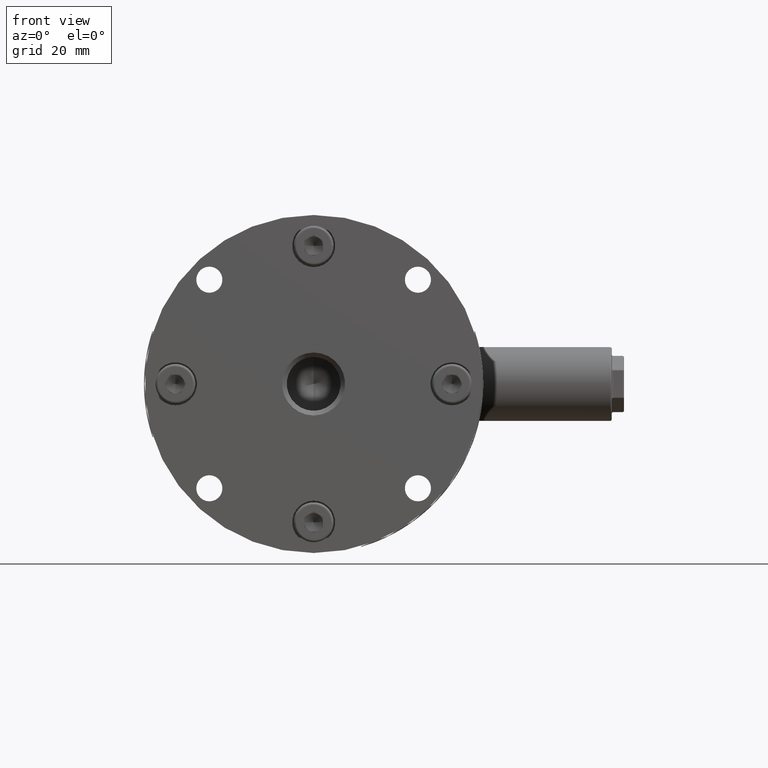
[diagram: clean part render]
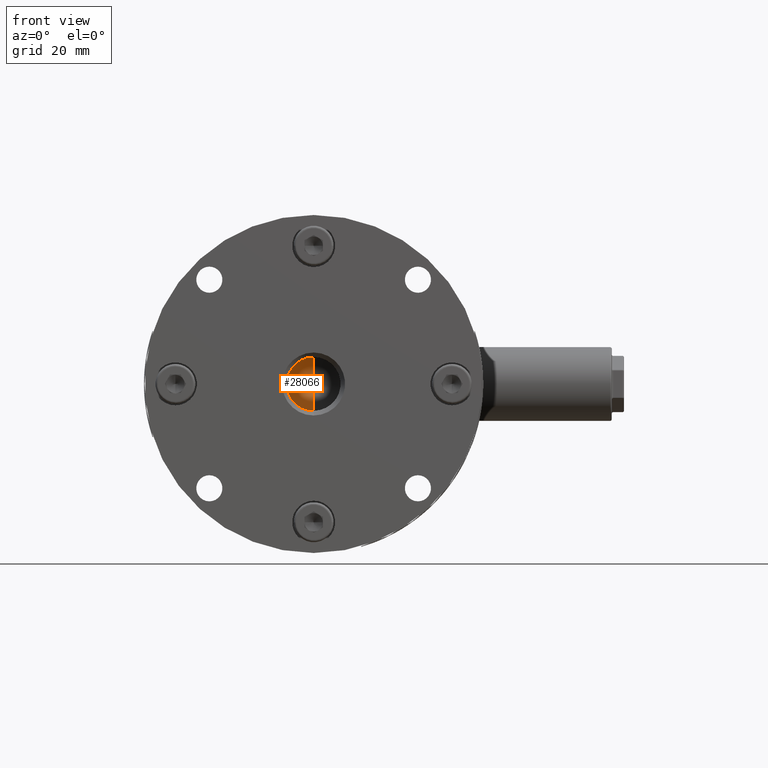
[diagram: same view with one face highlighted and labeled with its STEP entity id]
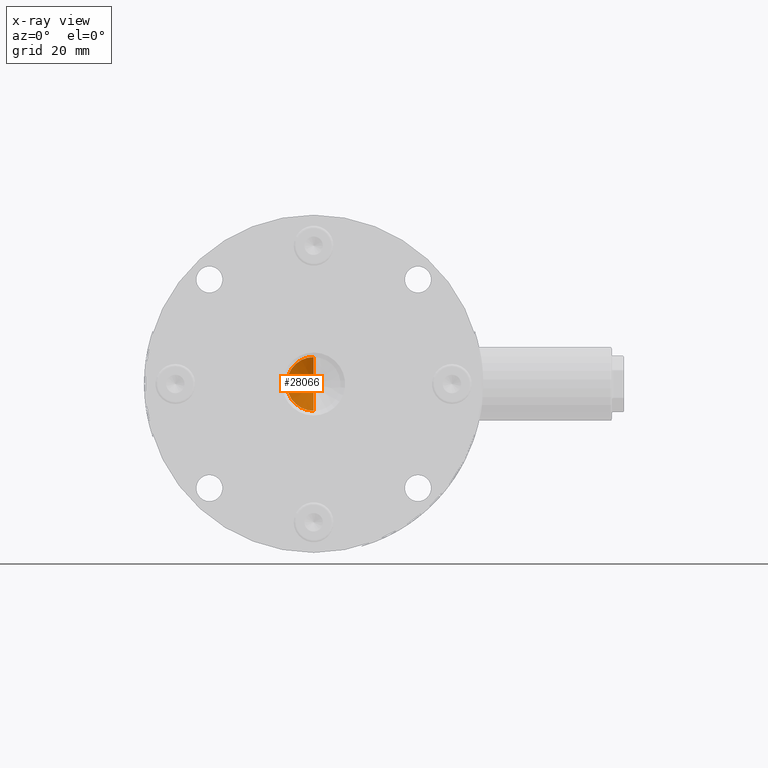
[diagram: x-ray of the same camera — body ghosted, the highlighted face saturated]
A machine part, front view. The second image highlights one B-rep face of the part: STEP entity #28066.
The next image is the same camera in x-ray: the body ghosted, the highlighted face saturated — about 0% of this face is hidden behind the body in this view.
In plain terms, the highlighted conical surface has half-angle 65 deg.
Its self-contained STEP definition (entity closure, byte-faithful):
#2691 = DIRECTION ( 'NONE',  ( 0.0000000000000000000, 0.0000000000000000000, -1.000000000000000000 ) ) ;
#2824 = LINE ( 'NONE', #5284, #5569 ) ;
#3206 = CARTESIAN_POINT ( 'NONE',  ( 1.071565949253934100E-015, 35.00000000000000000, 8.750000000000000000 ) ) ;
#4298 = EDGE_CURVE ( 'NONE', #33912, #18504, #14641, .T. ) ;
#5131 = CARTESIAN_POINT ( 'NONE',  ( 0.0000000000000000000, 35.00000000000000000, 0.0000000000000000000 ) ) ;
#5284 = CARTESIAN_POINT ( 'NONE',  ( 0.0000000000000000000, 35.00000000000000000, -8.750000000000000000 ) ) ;
#5569 = VECTOR ( 'NONE', #28699, 1000.000000000000200 ) ;
#5989 = FACE_OUTER_BOUND ( 'NONE', #25514, .T. ) ;
#7322 = VECTOR ( 'NONE', #36564, 1000.000000000000200 ) ;
#8409 = AXIS2_PLACEMENT_3D ( 'NONE', #31243, #16861, #2691 ) ;
#9784 = EDGE_CURVE ( 'NONE', #18504, #31483, #33056, .T. ) ;
#14635 = ORIENTED_EDGE ( 'NONE', *, *, #9784, .T. ) ;
#14641 = LINE ( 'NONE', #31067, #7322 ) ;
#16861 = DIRECTION ( 'NONE',  ( 0.0000000000000000000, -1.000000000000000000, 0.0000000000000000000 ) ) ;
#17844 = CARTESIAN_POINT ( 'NONE',  ( -9.571570288528769900E-015, 39.08019200885625100, 0.0000000000000000000 ) ) ;
#18504 = VERTEX_POINT ( 'NONE', #3206 ) ;
#21676 = ORIENTED_EDGE ( 'NONE', *, *, #36701, .F. ) ;
#22982 = DIRECTION ( 'NONE',  ( 0.0000000000000000000, 0.0000000000000000000, -1.000000000000000000 ) ) ;
#25514 = EDGE_LOOP ( 'NONE', ( #21676, #35564, #14635 ) ) ;
#28066 = ADVANCED_FACE ( 'NONE', ( #5989 ), #28305, .F. ) ;
#28305 = CONICAL_SURFACE ( 'NONE', #30840, 8.750000000000000000, 1.134464013796314700 ) ;
#28558 = DIRECTION ( 'NONE',  ( 0.0000000000000000000, -1.000000000000000000, 0.0000000000000000000 ) ) ;
#28699 = DIRECTION ( 'NONE',  ( 0.0000000000000000000, -0.4226182617406990000, -0.9063077870366501600 ) ) ;
#30840 = AXIS2_PLACEMENT_3D ( 'NONE', #5131, #28558, #22982 ) ;
#31067 = CARTESIAN_POINT ( 'NONE',  ( 1.071565949253934100E-015, 35.00000000000000000, 8.750000000000000000 ) ) ;
#31243 = CARTESIAN_POINT ( 'NONE',  ( 0.0000000000000000000, 35.00000000000000000, 0.0000000000000000000 ) ) ;
#31483 = VERTEX_POINT ( 'NONE', #31852 ) ;
#31852 = CARTESIAN_POINT ( 'NONE',  ( 0.0000000000000000000, 35.00000000000000000, -8.750000000000000000 ) ) ;
#33056 = CIRCLE ( 'NONE', #8409, 8.750000000000000000 ) ;
#33912 = VERTEX_POINT ( 'NONE', #17844 ) ;
#35564 = ORIENTED_EDGE ( 'NONE', *, *, #4298, .T. ) ;
#36564 = DIRECTION ( 'NONE',  ( 1.109906930436754600E-016, -0.4226182617406990000, 0.9063077870366501600 ) ) ;
#36701 = EDGE_CURVE ( 'NONE', #33912, #31483, #2824, .T. ) ;